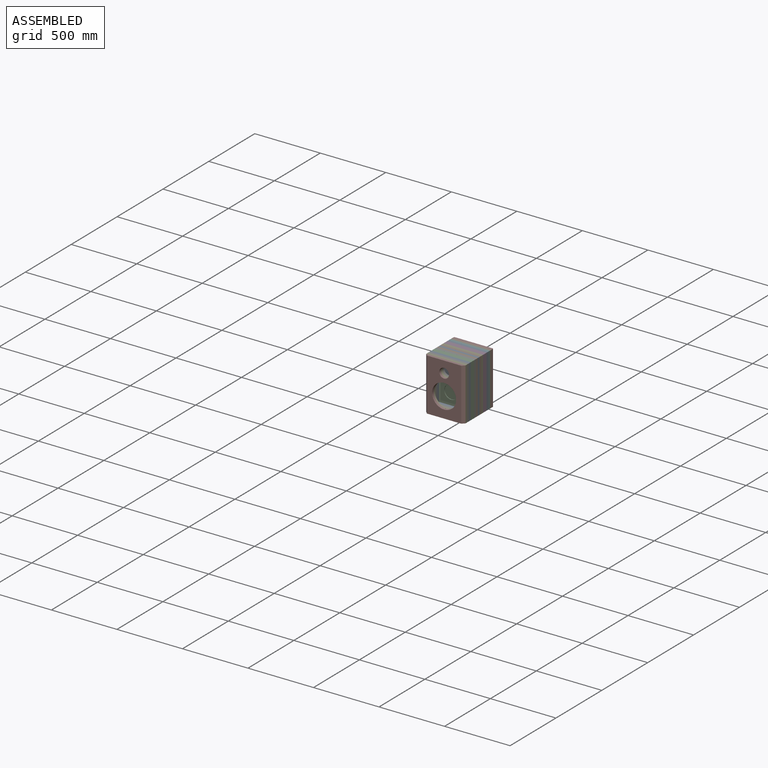
[diagram: assembled view]
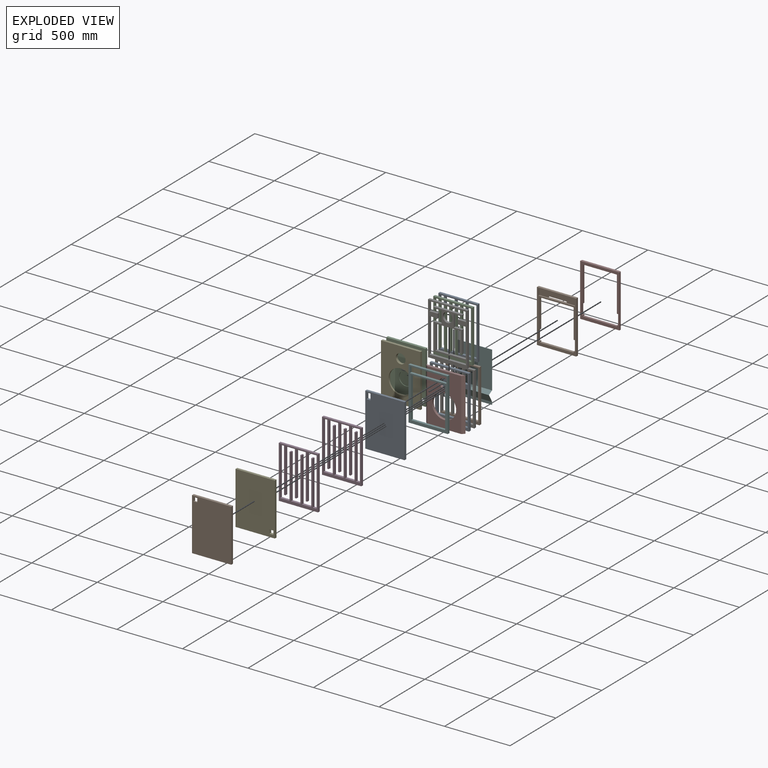
[diagram: exploded view]
GUIDED TOUR — MATED ASSEMBLY (Onshape document a08b8a4d7ae8b5d86f2d0922, AutoMate assembly a08b8a4d7ae8b5d86f2d0922_91ecea3c925a992e2403d908_82c07527d75c310c71b328ae_default)

This assembly has 18 components, labeled P0..P17 below (a component is one placed occurrence of a part; the same part can appear more than once), held together by 17 mates. A mate is a constraint between two components; its type names the relative motion it leaves free:
  FASTENED — locks the two components together rigidly (no relative motion).
Axis/direction vectors are unit vectors and 'through' points are millimeter coordinates, both in the assembly's world frame.

MATES
  1. FASTENED "Fastened 7": P14 <-> P10, direction (0.000, -1.000, 0.000) through (-13.29, 199.12, -46.56) mm
  2. FASTENED "Fastened 11": P4 <-> P9, direction (0.000, -1.000, 0.000) through (-13.29, 275.12, -46.56) mm
  3. FASTENED "Fastened 3": P6 <-> P8, direction (0.000, 1.000, 0.000) through (-13.29, 142.12, -46.56) mm
  4. FASTENED "Fastened 4": P7 <-> P1, direction (0.000, -1.000, 0.000) through (-13.29, 389.12, -46.56) mm
  5. FASTENED "Fastened 15": P0 <-> P5, direction (0.000, 1.000, 0.000) through (-13.29, 351.12, -46.56) mm
  6. FASTENED "Fastened 5": P2 <-> P8, direction (0.000, -1.000, 0.000) through (-13.29, 161.12, -46.56) mm
  7. FASTENED "Fastened 8": P14 <-> P17, direction (0.000, 1.000, 0.000) through (-13.29, 218.12, -46.56) mm
  8. FASTENED "Fastened 9": P17 <-> P16, direction (0.000, 1.000, 0.000) through (-13.29, 237.12, -46.56) mm
  9. FASTENED "Fastened 12": P4 <-> P3, direction (0.000, 1.000, 0.000) through (-13.29, 294.12, -46.56) mm
  10. FASTENED "Fastened 14": P11 <-> P0, direction (0.000, 1.000, 0.000) through (-13.29, 332.12, -46.56) mm
  11. FASTENED "Fastened 16": P5 <-> P1, direction (0.000, 1.000, 0.000) through (-13.29, 370.12, -46.56) mm
  12. FASTENED "Fastened 17": P7 <-> P13, direction (0.000, 1.000, 0.000) through (-13.29, 406.12, 343.44) mm
  13. FASTENED "Fastened 2": P6 <-> P12, direction (0.000, -1.000, 0.000) through (-13.29, 123.12, -46.56) mm
  14. FASTENED "Fastened 6": P2 <-> P10, direction (0.000, 1.000, 0.000) through (-13.29, 180.12, -46.56) mm
  15. FASTENED "Fastened 13": P3 <-> P11, direction (0.000, 1.000, 0.000) through (-13.29, 313.12, -46.56) mm
  16. FASTENED "Fastened 1": P12 <-> P15, direction (0.000, -1.000, 0.000) through (-13.29, 104.12, -46.56) mm
  17. FASTENED "Fastened 10": P16 <-> P9, direction (0.000, 1.000, 0.000) through (-13.29, 256.12, -46.56) mm

ASSEMBLY ORDER
  1. P13 — the base component [order verified]
  2. P7 [order verified]
  3. P1 [order verified]
  4. P5 [order verified]
  5. P0 [order verified]
  6. P11 [order verified]
  7. P3 [order verified]
  8. P4 [order verified]
  9. P9 [order verified]
  10. P16 [order verified]
  11. P17 [order verified]
  12. P14 [order verified]
  13. P10 [order verified]
  14. P2 [order verified]
  15. P8 [order verified]
  16. P6 [order verified]
  17. P12 [order verified]
  18. P15 [order verified]
Order-tag legend:
  [order verified] — this step's position reverses a verified removal order: the component was checked to insert without passing through the ones already placed.

Of the 18 components, 10 carry the full construction recipe — the FeatureScript program that regenerates the part's solid from scratch; the rest are supplied as boundary geometry only.
Because this assembly has more than 12 components, the tour below covers the 12 most significant ones individually (every recipe-attached component first, then the largest by part volume), in assembly order; the remaining 6 are summarized together in a grouped section at the end.
Each toured component is shown spotlighted twice — in the assembled view, then in the exploded view, where a leader line traces a displaced component back to its assembled socket (saturated green if recipe-attached, orange if geometry-only; every other component desaturated gray) — followed by its recipe or geometry summary and the mates that hold it.
NOTE — document 2 of 2 of this assembly tour. The two overview renders and the header above are repeated from document 1; the component sections below continue where the previous document stopped.
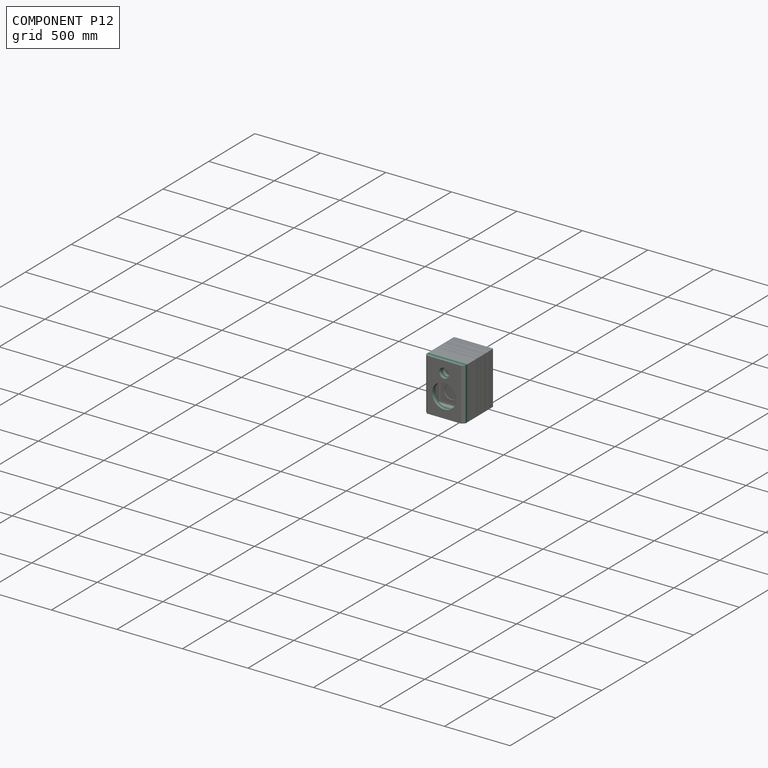
[diagram: component P12 — assembled]
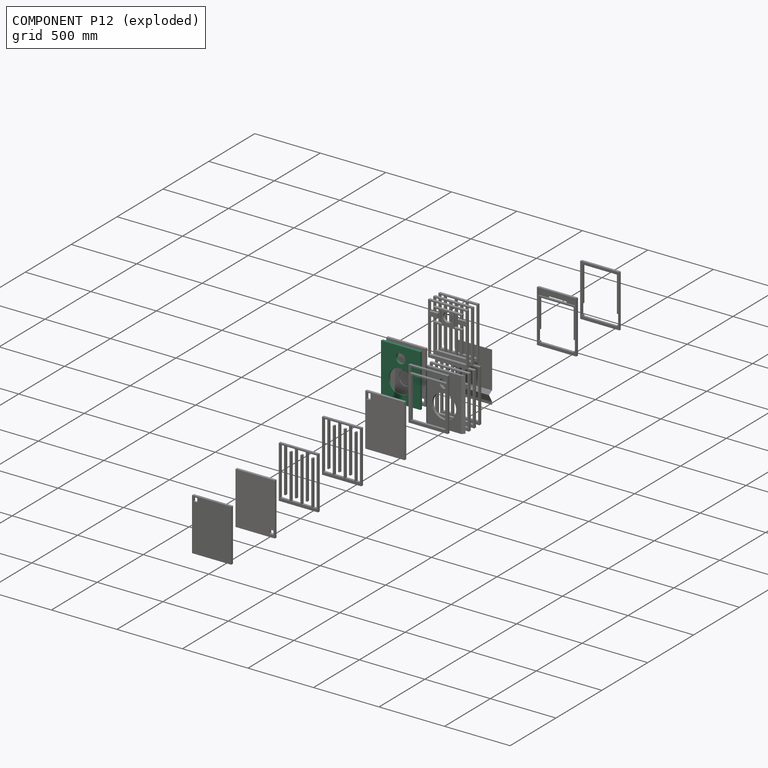
[diagram: component P12 — exploded]
COMPONENT P12 — recipe-attached (CADFS 00117838, mesh-verified: the recipe's output STEP matches this component's geometry to below the mesh-comparison resolution (tessellation chordal tolerance ~0.751 mm)).
Held by: FASTENED mate "Fastened 2" to P6; FASTENED mate "Fastened 1" to P15.
Construction recipe (FeatureScript — the CAD program that rebuilds this solid; sketch coordinates are in the units given by the * unit suffixes, e.g. mm):

FeatureScript 1511;
import(path : "onshape/std/geometry.fs", version : "1511.0");
import(path : "onshape/std/common.fs", version : "1511.0");
const mm = millimeter;
const VERTEX = EntityType.VERTEX;
const EDGE = EntityType.EDGE;
const FACE = EntityType.FACE;
const BODY = EntityType.BODY;
function v(x, y){return vector(x, y);}
function OD(order){return orderDisambiguation(order);}
function OSD(set){return originalSetDisambiguation(set);}
function TD(topology){return topologyDisambiguation(topology);}
function TDD(query){return trueDependencyDisambiguation(query);}
function sQuery(a, b, c) {return sketchEntityQuery(a, b, c);}

annotation { "Feature Type Name" : "Feature", "Feature Type Description" : "" }
export const myFeature = defineFeature(function(context is Context, id is Id, definition is map)
    precondition{}
    {
        {
            var Q0;
            Q0=qCreatedBy(makeId("Front.planeOp"),FACE);
            var sketch = newSketch(context, id + "F0", { "sketchPlane" : qUnion([Q0])});
            skLineSegment(sketch, "E0.bottom", {"start": v(-160, 259.67) * mm, "end": v(140, 259.67) * mm});
            skLineSegment(sketch, "E0.top", {"start": v(-160, -140.33) * mm, "end": v(140, -140.33) * mm});
            skLineSegment(sketch, "E0.left", {"start": v(-160, 259.67) * mm, "end": v(-160, -140.33) * mm});
            skLineSegment(sketch, "E0.right", {"start": v(140, 259.67) * mm, "end": v(140, -140.33) * mm});
            skSolve(sketch);
        }
        {
            var Q0;
            Q0 = qSketchRegion(id + "F0", true);
            extrude(context, id + "F1", {"entities" : qUnion([Q0]), "depth" : 19 * mm});
        }
        {
            var Q0;
            Q0=makeQuery(id+"F1.opExtrude","CAP_FACE",FACE,{"disambiguationData":[OSD([sQuery(id+"F0.wireOp",EDGE,"E0.bottom"),sQuery(id+"F0.wireOp",EDGE,"E0.top"),sQuery(id+"F0.wireOp",EDGE,"E0.left"),sQuery(id+"F0.wireOp",EDGE,"E0.right")])],"isStart":false});
            var sketch = newSketch(context, id + "F2", { "sketchPlane" : qUnion([Q0])});
            skCircle(sketch, "E1", {"center": v(-10, 172.67) * mm, "radius": 37 * mm});
            skPoint(sketch, "E1.centerSnap0", {"position": v(-10, 259.67) * mm});
            skCircle(sketch, "E2", {"center": v(-10, 14.17) * mm, "radius": 92 * mm});
            skPoint(sketch, "E2.centerSnap0", {"position": v(-10, -140.33) * mm});
            skSolve(sketch);
        }
        {
            var Q0;
            Q0 = qSketchRegion(id + "F2", true);
            extrude(context, id + "F3", {"entities" : qUnion([Q0]), "operationType" : NewBodyOperationType.REMOVE, "oppositeDirection" : true, "depth" : 19 * mm});
        }
        {
            var Q0;
            Q0=makeQuery(id+"F1.opExtrude","CAP_FACE",FACE,{"disambiguationData":[OSD([sQuery(id+"F0.wireOp",EDGE,"E0.bottom"),sQuery(id+"F0.wireOp",EDGE,"E0.top"),sQuery(id+"F0.wireOp",EDGE,"E0.left"),sQuery(id+"F0.wireOp",EDGE,"E0.right")])],"isStart":true});
            var sketch = newSketch(context, id + "F4", { "sketchPlane" : qUnion([Q0])});
            skLineSegment(sketch, "E3", {"start": v(-129.5, -88.33) * mm, "end": v(-129.5, -118.33) * mm});
            skLineSegment(sketch, "E4", {"start": v(-129.5, -118.33) * mm, "end": v(149.5, -118.33) * mm});
            skLineSegment(sketch, "E5", {"start": v(149.5, -118.33) * mm, "end": v(149.5, 146.67) * mm});
            skLineSegment(sketch, "E6", {"start": v(149.5, 146.67) * mm, "end": v(87, 146.67) * mm});
            skLineSegment(sketch, "E7", {"start": v(87, 146.67) * mm, "end": v(87, 179.67) * mm});
            skLineSegment(sketch, "E8", {"start": v(87, 179.67) * mm, "end": v(149.5, 179.67) * mm});
            skLineSegment(sketch, "E9", {"start": v(149.5, 179.67) * mm, "end": v(149.5, 249.67) * mm});
            skLineSegment(sketch, "E10", {"start": v(149.5, 249.67) * mm, "end": v(-129.5, 249.67) * mm});
            skLineSegment(sketch, "E11", {"start": v(-129.5, 249.67) * mm, "end": v(-129.5, 179.67) * mm});
            skLineSegment(sketch, "E12", {"start": v(-129.5, 179.67) * mm, "end": v(-67, 179.67) * mm});
            skLineSegment(sketch, "E13", {"start": v(-67, 179.67) * mm, "end": v(-67, 146.67) * mm});
            skLineSegment(sketch, "E14", {"start": v(-67, 146.67) * mm, "end": v(-129.5, 146.67) * mm});
            skLineSegment(sketch, "E15", {"start": v(-129.5, 146.67) * mm, "end": v(-129.5, -78.33) * mm});
            skLineSegment(sketch, "E16", {"start": v(-129.5, -78.33) * mm, "end": v(102.5, -78.33) * mm});
            skLineSegment(sketch, "E17", {"start": v(102.5, -78.33) * mm, "end": v(102.5, 106.67) * mm});
            skLineSegment(sketch, "E18", {"start": v(102.5, 106.67) * mm, "end": v(-82.5, 106.67) * mm});
            skLineSegment(sketch, "E19", {"start": v(-82.5, 106.67) * mm, "end": v(-82.5, -48.33) * mm});
            skLineSegment(sketch, "E20", {"start": v(-82.5, -48.33) * mm, "end": v(-99.5, -48.33) * mm});
            skLineSegment(sketch, "E21", {"start": v(-99.5, -48.33) * mm, "end": v(-99.5, 116.67) * mm});
            skLineSegment(sketch, "E22", {"start": v(-99.5, 116.67) * mm, "end": v(-37, 116.67) * mm});
            skLineSegment(sketch, "E23", {"start": v(-37, 116.67) * mm, "end": v(-37, 209.67) * mm});
            skLineSegment(sketch, "E24", {"start": v(-37, 209.67) * mm, "end": v(-99.5, 209.67) * mm});
            skLineSegment(sketch, "E25", {"start": v(-99.5, 209.67) * mm, "end": v(-99.5, 219.67) * mm});
            skLineSegment(sketch, "E26", {"start": v(-99.5, 219.67) * mm, "end": v(119.5, 219.67) * mm});
            skLineSegment(sketch, "E27", {"start": v(119.5, 219.67) * mm, "end": v(119.5, 209.67) * mm});
            skLineSegment(sketch, "E28", {"start": v(119.5, 209.67) * mm, "end": v(57, 209.67) * mm});
            skLineSegment(sketch, "E29", {"start": v(57, 209.67) * mm, "end": v(57, 116.67) * mm});
            skLineSegment(sketch, "E30", {"start": v(57, 116.67) * mm, "end": v(119.5, 116.67) * mm});
            skLineSegment(sketch, "E31", {"start": v(119.5, 116.67) * mm, "end": v(119.5, -88.33) * mm});
            skLineSegment(sketch, "E32", {"start": v(119.5, -88.33) * mm, "end": v(-129.5, -88.33) * mm});
            skSolve(sketch);
        }
        {
            var Q0;
            Q0 = qSketchRegion(id + "F4", true);
            extrude(context, id + "F5", {"entities" : qUnion([Q0]), "operationType" : NewBodyOperationType.REMOVE, "oppositeDirection" : true, "depth" : 8 * mm});
        }
    });
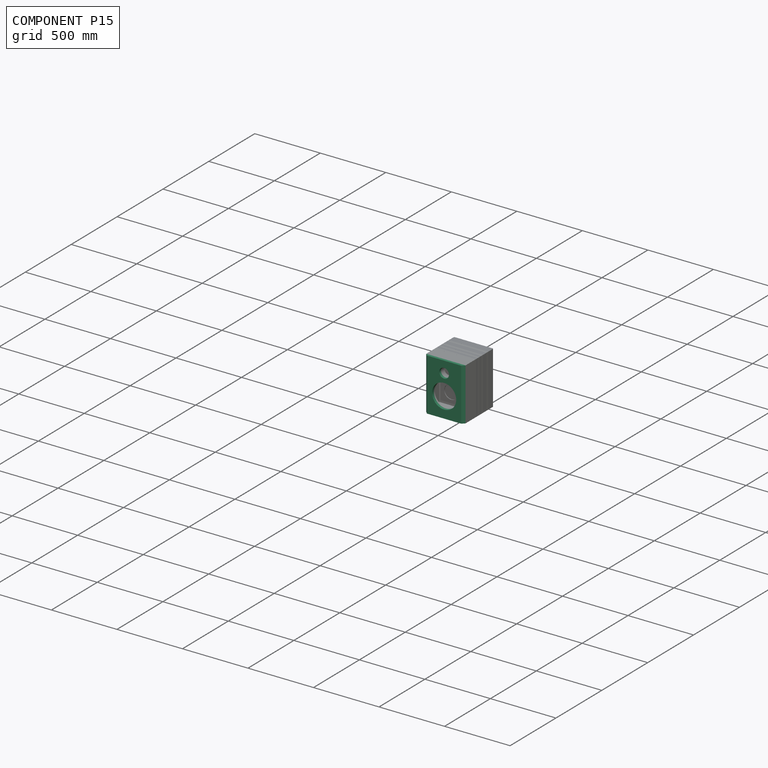
[diagram: component P15 — assembled]
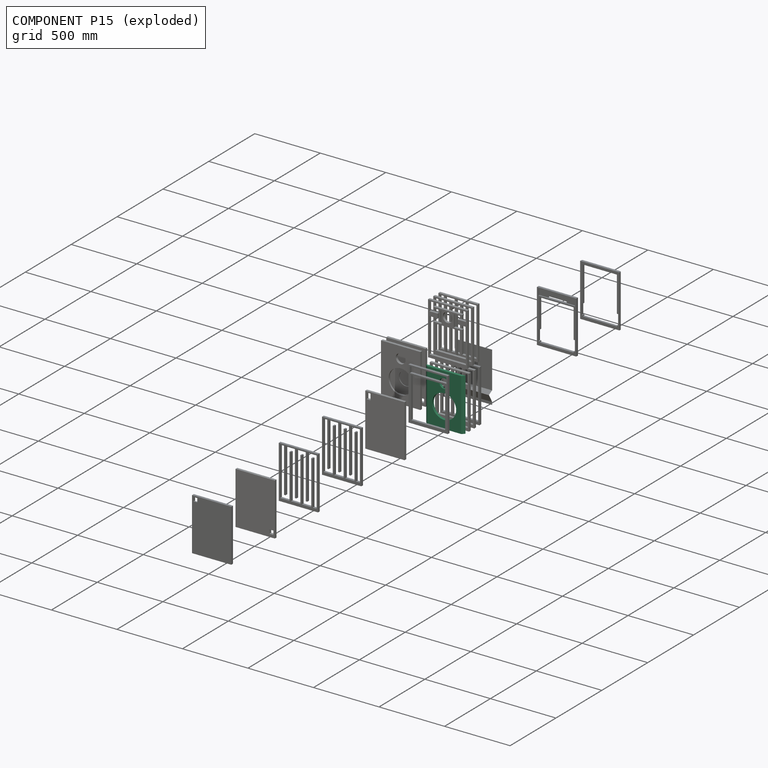
[diagram: component P15 — exploded]
COMPONENT P15 — recipe-attached (CADFS 00117837, mesh-verified: the recipe's output STEP matches this component's geometry to below the mesh-comparison resolution (tessellation chordal tolerance ~0.751 mm)).
Held by: FASTENED mate "Fastened 1" to P12.
Construction recipe (FeatureScript — the CAD program that rebuilds this solid; sketch coordinates are in the units given by the * unit suffixes, e.g. mm):

FeatureScript 1511;
import(path : "onshape/std/geometry.fs", version : "1511.0");
import(path : "onshape/std/common.fs", version : "1511.0");
const mm = millimeter;
const VERTEX = EntityType.VERTEX;
const EDGE = EntityType.EDGE;
const FACE = EntityType.FACE;
const BODY = EntityType.BODY;
function v(x, y){return vector(x, y);}
function OD(order){return orderDisambiguation(order);}
function OSD(set){return originalSetDisambiguation(set);}
function TD(topology){return topologyDisambiguation(topology);}
function TDD(query){return trueDependencyDisambiguation(query);}
function sQuery(a, b, c) {return sketchEntityQuery(a, b, c);}

annotation { "Feature Type Name" : "Feature", "Feature Type Description" : "" }
export const myFeature = defineFeature(function(context is Context, id is Id, definition is map)
    precondition{}
    {
        {
            var Q0;
            Q0=qCreatedBy(makeId("Front.planeOp"),FACE);
            var sketch = newSketch(context, id + "F0", { "sketchPlane" : qUnion([Q0])});
            skLineSegment(sketch, "E0.bottom", {"start": v(-250.04, 196.75) * mm, "end": v(49.96, 196.75) * mm});
            skLineSegment(sketch, "E0.top", {"start": v(-250.04, -203.25) * mm, "end": v(49.96, -203.25) * mm});
            skLineSegment(sketch, "E0.left", {"start": v(-250.04, 196.75) * mm, "end": v(-250.04, -203.25) * mm});
            skLineSegment(sketch, "E0.right", {"start": v(49.96, 196.75) * mm, "end": v(49.96, -203.25) * mm});
            skSolve(sketch);
        }
        {
            var Q0;
            Q0=makeQuery(id+"F0.imprint","IMPRINT",FACE,{"disambiguationData":[TD([[makeQuery(id+"F0.imprint","IMPRINT",EDGE,{"derivedFrom":sQuery(id+"F0.wireOp",EDGE,"E0.bottom")}),-1.0]])]});
            extrude(context, id + "F1", {"entities" : qUnion([Q0]), "depth" : 19 * mm});
        }
        {
            var Q0;
            Q0=makeQuery(id+"F1.opExtrude","CAP_FACE",FACE,{"disambiguationData":[OSD([sQuery(id+"F0.wireOp",EDGE,"E0.bottom"),sQuery(id+"F0.wireOp",EDGE,"E0.top"),sQuery(id+"F0.wireOp",EDGE,"E0.left"),sQuery(id+"F0.wireOp",EDGE,"E0.right")])],"isStart":false});
            var sketch = newSketch(context, id + "F2", { "sketchPlane" : qUnion([Q0])});
            skCircle(sketch, "E1", {"center": v(-100.04, 109.75) * mm, "radius": 37 * mm});
            skPoint(sketch, "E1.centerSnap0", {"position": v(-100.04, 196.75) * mm});
            skCircle(sketch, "E2", {"center": v(-100.04, -48.75) * mm, "radius": 92 * mm});
            skPoint(sketch, "E2.centerSnap0", {"position": v(-100.04, -203.25) * mm});
            skSolve(sketch);
        }
        {
            var Q0;
            Q0=makeQuery(id+"F2.imprint","IMPRINT",FACE,{"disambiguationData":[TD([[makeQuery(id+"F2.imprint","IMPRINT",EDGE,{"derivedFrom":sQuery(id+"F2.wireOp",EDGE,"E1")}),1.0]])]});
            var Q1;
            Q1=makeQuery(id+"F2.imprint","IMPRINT",FACE,{"disambiguationData":[TD([[makeQuery(id+"F2.imprint","IMPRINT",EDGE,{"derivedFrom":sQuery(id+"F2.wireOp",EDGE,"E2")}),1.0]])]});
            extrude(context, id + "F3", {"entities" : qUnion([Q0, Q1]), "operationType" : NewBodyOperationType.REMOVE, "oppositeDirection" : true, "depth" : 19 * mm});
        }
        {
            var Q0;
            Q0=makeQuery(id+"F1.opExtrude","CAP_EDGE",EDGE,{"disambiguationData":[OSD([sQuery(id+"F0.wireOp",EDGE,"E0.left")])],"isStart":false});
            var Q1;
            Q1=makeQuery(id+"F1.opExtrude","CAP_EDGE",EDGE,{"disambiguationData":[OSD([sQuery(id+"F0.wireOp",EDGE,"E0.right")])],"isStart":false});
            chamfer(context, id + "F4", {"entities" : qUnion([Q0, Q1]), "width" : 19 * mm, "tangentPropagation" : true});
        }
        {
            var Q0;
            Q0=makeQuery(id+"F1.opExtrude","CAP_FACE",FACE,{"disambiguationData":[OSD([sQuery(id+"F0.wireOp",EDGE,"E0.bottom"),sQuery(id+"F0.wireOp",EDGE,"E0.top"),sQuery(id+"F0.wireOp",EDGE,"E0.left"),sQuery(id+"F0.wireOp",EDGE,"E0.right")])],"isStart":true});
            var sketch = newSketch(context, id + "F5", { "sketchPlane" : qUnion([Q0])});
            skLineSegment(sketch, "E3", {"start": v(136.77, 105.25) * mm, "end": v(212.04, 105.25) * mm});
            skLineSegment(sketch, "E4", {"start": v(212.04, 105.25) * mm, "end": v(212.04, -194.75) * mm});
            skLineSegment(sketch, "E5", {"start": v(212.04, -194.75) * mm, "end": v(218.04, -194.75) * mm});
            skLineSegment(sketch, "E6", {"start": v(218.04, -194.75) * mm, "end": v(218.04, 111.25) * mm});
            skLineSegment(sketch, "E7", {"start": v(218.04, 111.25) * mm, "end": v(136.77, 111.25) * mm});
            skLineSegment(sketch, "E8", {"start": v(136.77, 111.25) * mm, "end": v(136.77, 105.25) * mm});
            skSolve(sketch);
        }
        {
            var Q0;
            Q0 = qSketchRegion(id + "F5", true);
            extrude(context, id + "F6", {"entities" : qUnion([Q0]), "operationType" : NewBodyOperationType.REMOVE, "oppositeDirection" : true, "depth" : 3 * mm});
        }
        {
            var Q0;
            Q0=makeQuery(id+"F1.opExtrude","CAP_FACE",FACE,{"disambiguationData":[OSD([sQuery(id+"F0.wireOp",EDGE,"E0.bottom"),sQuery(id+"F0.wireOp",EDGE,"E0.top"),sQuery(id+"F0.wireOp",EDGE,"E0.left"),sQuery(id+"F0.wireOp",EDGE,"E0.right")])],"isStart":true});
            var sketch = newSketch(context, id + "F7", { "sketchPlane" : qUnion([Q0])});
            skLineSegment(sketch, "E9", {"start": v(98.54, -130.08) * mm, "end": v(98.54, -194.75) * mm});
            skLineSegment(sketch, "E10", {"start": v(98.54, -194.75) * mm, "end": v(104.54, -194.75) * mm});
            skLineSegment(sketch, "E11", {"start": v(104.54, -194.75) * mm, "end": v(104.54, -130.08) * mm});
            skLineSegment(sketch, "E12", {"start": v(104.54, -130.08) * mm, "end": v(98.54, -130.08) * mm});
            skSolve(sketch);
        }
        {
            var Q0;
            Q0 = qSketchRegion(id + "F7", true);
            extrude(context, id + "F8", {"entities" : qUnion([Q0]), "operationType" : NewBodyOperationType.REMOVE, "oppositeDirection" : true, "depth" : 3 * mm});
        }
    });
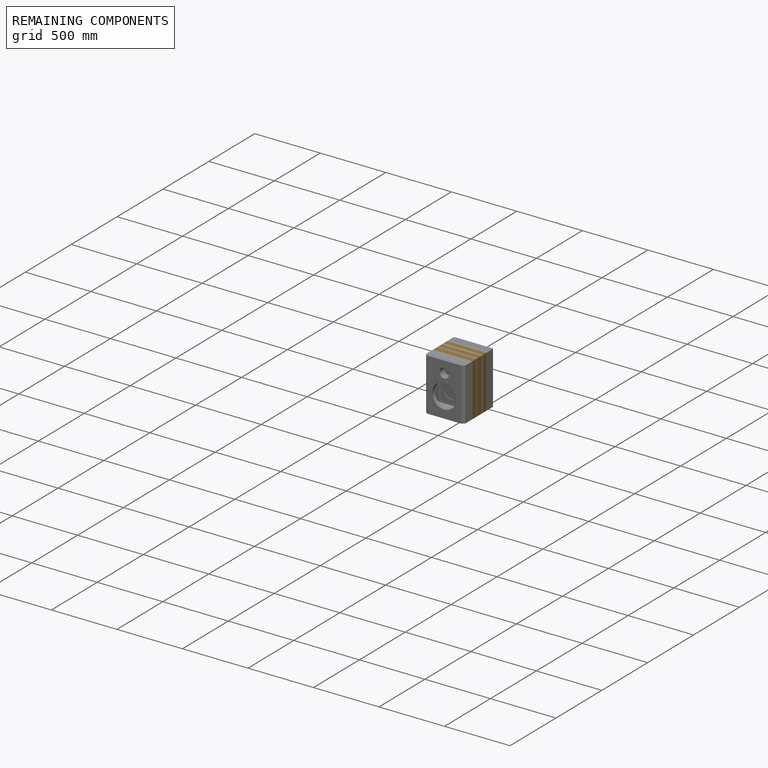
[diagram: remaining components — assembled]
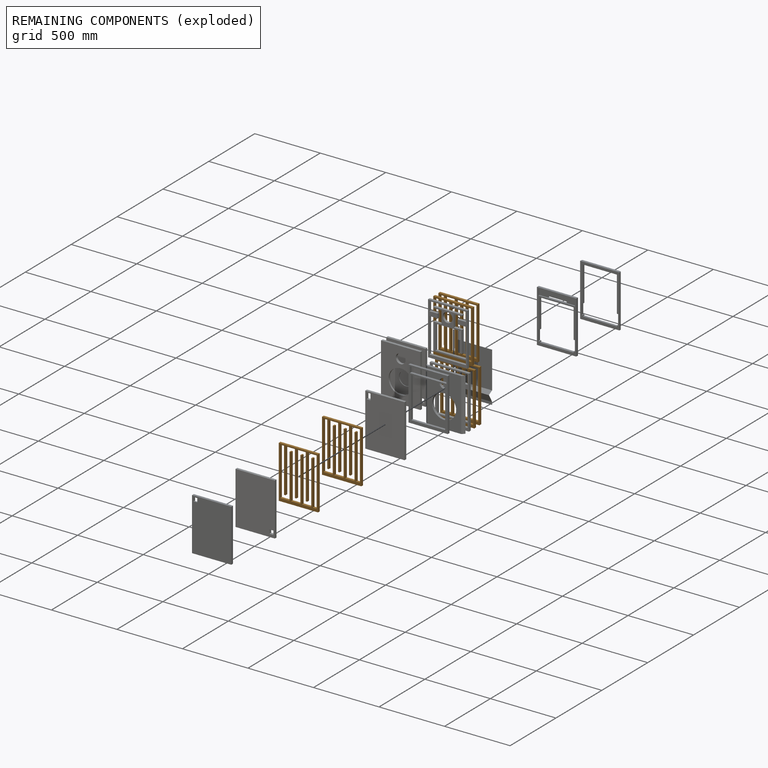
[diagram: remaining components — exploded]
REMAINING COMPONENTS (grouped) — the 6 components below fall outside the per-component tour by the significance rule stated above; both spotlight views highlight the whole group.
  P11: bounding box 400.0 x 300.0 x 19.0 mm, volume 772350 mm^3. Held by: FASTENED mate "Fastened 14" to P0; FASTENED mate "Fastened 13" to P3.
  P3: bounding box 400.0 x 300.0 x 19.0 mm, volume 772350 mm^3. Held by: FASTENED mate "Fastened 12" to P4; FASTENED mate "Fastened 13" to P11.
  P9: bounding box 400.0 x 300.0 x 19.0 mm, volume 772350 mm^3. Held by: FASTENED mate "Fastened 11" to P4; FASTENED mate "Fastened 10" to P16.
  P16: bounding box 400.0 x 300.0 x 19.0 mm, volume 772350 mm^3. Held by: FASTENED mate "Fastened 9" to P17; FASTENED mate "Fastened 10" to P9.
  P14: bounding box 400.0 x 300.0 x 19.0 mm, volume 772350 mm^3. Held by: FASTENED mate "Fastened 7" to P10; FASTENED mate "Fastened 8" to P17.
  P10: bounding box 400.0 x 300.0 x 19.0 mm, volume 772350 mm^3. Held by: FASTENED mate "Fastened 7" to P14; FASTENED mate "Fastened 6" to P2.
PROVENANCE & LICENSES
Assembly (occurrences, transforms, mates, per-part STEP geometry): AutoMate dataset, Zenodo record 7776208, CC0.
Construction recipes: CADFS (HuggingFace VladPyatov/CADFS, CC-BY-4.0, layered over the ABC dataset), FeatureScript reconstruction programs keyed by ABC model id.
Join: ABC meta listings map ABC model id -> Onshape documentId; within a shared document, parts are matched by geometric signature (bounding-box dims + volume at 0.1% relative tolerance, exact B-rep face/solid counts).
Verification: 10 of this assembly's 18 components carry a recipe attachment, and every attachment is mesh-verified: the CADFS STEP and the AutoMate member STEP were compared as meshes in their shared local frame (symmetric sampled-point-to-mesh distance); worst across the 10 attachments: below the mesh-comparison resolution (tessellation chordal tolerance ~0.751 mm) on a 500 mm part.
Renders: orthographic iso camera (az 35 / el 25); the floor grid conveys scale (grid pitch printed in each image; no ruler). In the exploded view each component is displaced by its stored offset vector: the offsets alone carry the explosion direction (mate normal/axis signs are not orientation cues and do not encode it), and separation distances are assigned per mate-chain, not proportionally to assembly-order depth.
